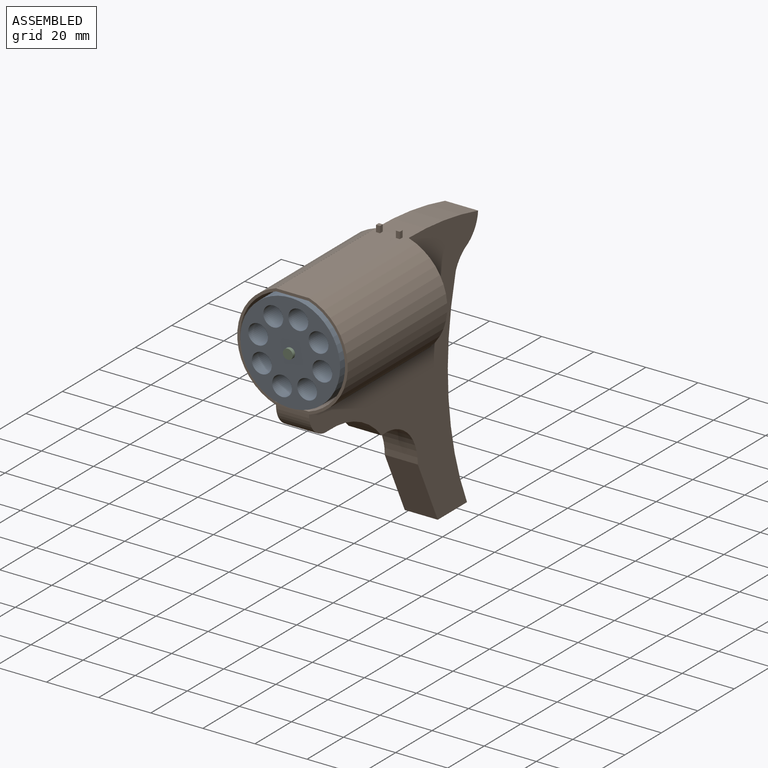
[diagram: assembled view]
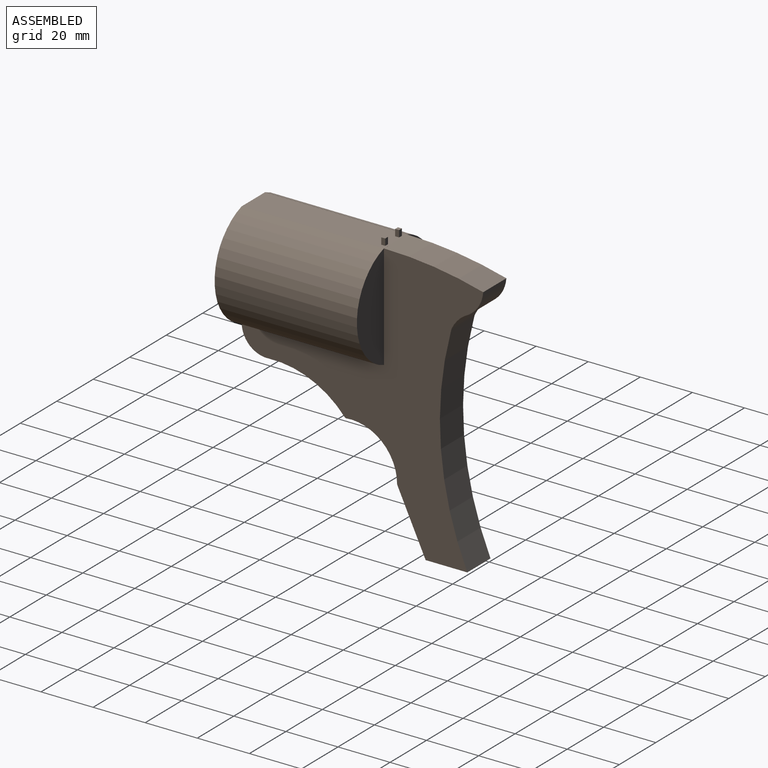
[diagram: assembled view, second angle]
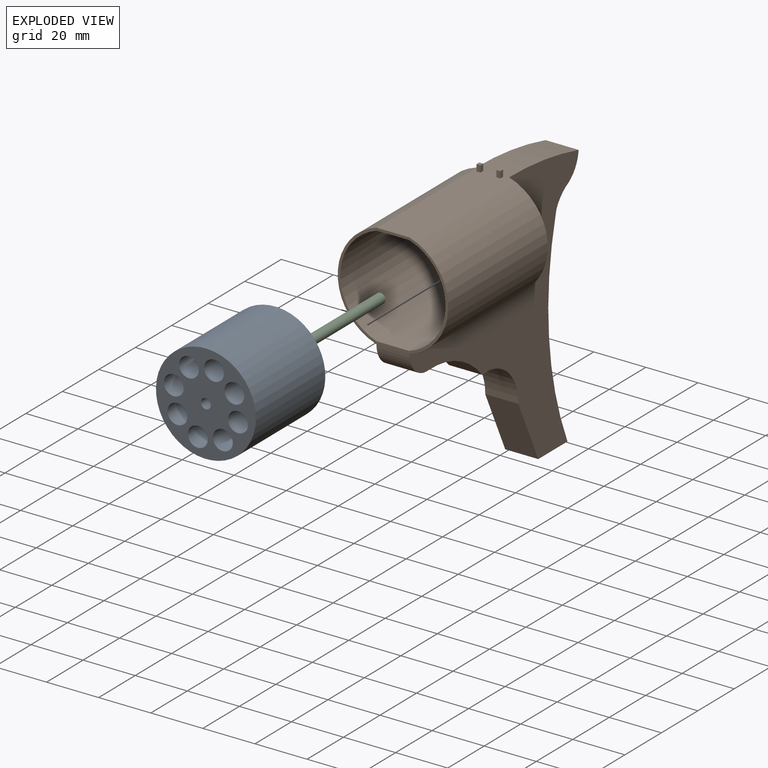
[diagram: exploded view]
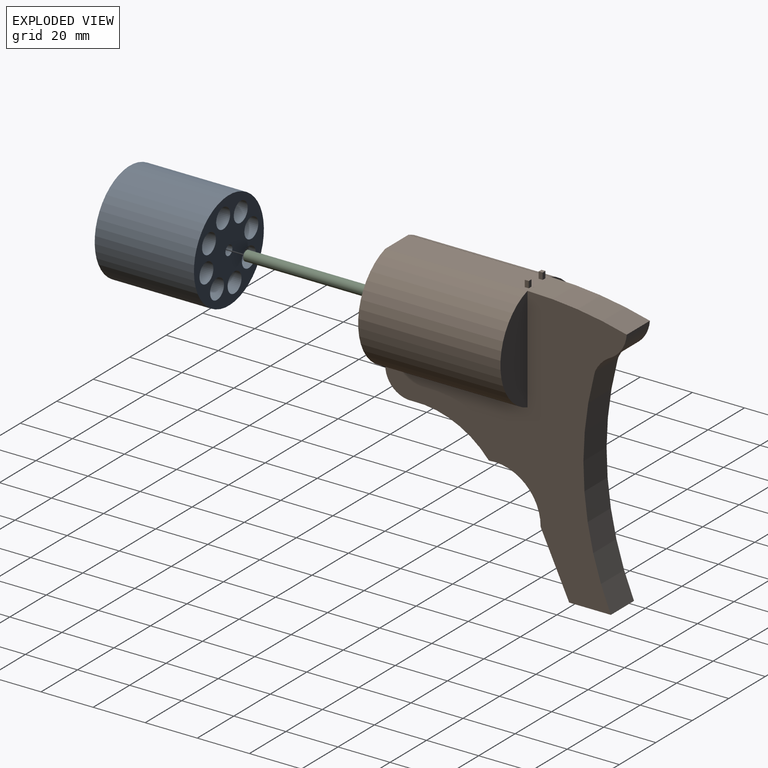
[diagram: exploded view, second angle]
ASSEMBLY  parts=3 mates=2
PART A: 12 faces, bbox 38.4x38.1x38.4 mm
  f0: cylinder r=3.81mm len=38.1mm, axis (0,1,0), area 912.1mm2, adj f10,f11
  f1: cylinder r=1.91mm len=38.1mm, axis (0,1,0), area 456mm2, adj f10,f11
  f2: cylinder r=3.81mm len=38.1mm, axis (0,1,0), area 912.1mm2, adj f10,f11
  f3: cylinder r=3.81mm len=38.1mm, axis (0,1,0), area 912.1mm2, adj f10,f11
  f4: cylinder r=3.81mm len=38.1mm, axis (0,1,0), area 912.1mm2, adj f10,f11
  f5: cylinder r=3.81mm len=38.1mm, axis (0,1,0), area 912.1mm2, adj f10,f11
  f6: cylinder r=3.81mm len=38.1mm, axis (0,1,0), area 912.1mm2, adj f10,f11
  f7: cylinder r=3.81mm len=38.1mm, axis (0,1,0), area 912.1mm2, adj f10,f11
  f8: cylinder r=3.81mm len=38.1mm, axis (0,1,0), area 912.1mm2, adj f10,f11
  f9: cylinder r=19.18mm len=38.35mm, axis (0,1,0), area 4590.8mm2, adj f10,f11
  f10: plane 38.35x38.35mm, normal (0,-1,0), area 779.1mm2, adj f0,f1,f2,f3,f4,f5,f6,f7
  f11: plane 38.35x38.35mm, normal (0,1,0), area 779.1mm2, adj f0,f1,f2,f3,f4,f5,f6,f7
PART B: 36 faces, bbox 42.4x92.7x106.4 mm
  f0: cylinder r=17.84mm len=12.7mm, axis (1,0,0), area 22mm2, adj f4,f5,f9,f23
  f1: plane 16x12.7mm, normal (0,0,-1), area 203.2mm2, adj f4,f5,f19,f23
  f2: plane 42.42x40.47mm, normal (0,-1,0), area 132mm2, adj f3,f7,f11,f12,f13,f14,f15,f16
  f3: cylinder r=21.21mm len=54.61mm, axis (0,1,0), area 2934.3mm2, adj f2,f4,f6,f12
  f4: plane 103.88x92.71mm, normal (-1,0,0), area 3187.5mm2, adj f0,f1,f3,f6,f8,f9,f10,f19
  f5: plane 103.88x92.71mm, normal (1,0,0), area 3187.5mm2, adj f0,f1,f6,f7,f8,f9,f10,f19
  f6: plane 42.42x40.47mm, normal (0,1,0), area 882.6mm2, adj f3,f4,f5,f7,f10,f11,f12,f13
  f7: cylinder r=21.21mm len=54.61mm, axis (0,1,0), area 2934.3mm2, adj f2,f5,f6,f11
  f8: cylinder r=12.03mm len=12.7mm, axis (1,0,0), area 142.3mm2, adj f4,f5,f9,f10
  f9: cylinder r=13.8mm len=12.7mm, axis (1,0,0), area 119.4mm2, adj f0,f4,f5,f8
  f10: cylinder r=146.97mm len=38.1mm, axis (1,0,0), area 489.5mm2, adj f4,f5,f6,f8
  f11: plane 54.61x0.02mm, normal (-1,0,0), area 1.3mm2, adj f2,f6,f7,f13
  f12: plane 54.61x0.02mm, normal (1,0,0), area 1.3mm2, adj f2,f3,f6,f13
  f13: plane 54.61x12.7mm, normal (0,0,1), area 688.9mm2, adj f2,f6,f11,f12,f24,f25,f26,f27
  f14: plane 45.72x12.53mm, normal (0,0,-1), area 573mm2, adj f2,f15,f17,f18
  f15: cylinder r=20.19mm len=45.72mm, axis (0,-1,0), area 2318mm2, adj f2,f14,f16,f18
  f16: plane 45.72x12.52mm, normal (0,0,1), area 572.5mm2, adj f2,f15,f17,f18
  f17: cylinder r=20.19mm len=45.72mm, axis (0,-1,0), area 2318mm2, adj f2,f14,f16,f18
  f18: plane 40.39x38.39mm, normal (0,-1,0), area 1252.9mm2, adj f14,f15,f16,f17,f34
  f19: plane 23.32x12.7mm, normal (0,-0.91,-0.43), area 327.3mm2, adj f1,f4,f5,f20
  f20: cylinder r=17.65mm len=19.86mm, axis (1,0,0), area 382.5mm2, adj f4,f5,f19,f21
  f21: cylinder r=35.94mm len=29.36mm, axis (1,0,0), area 421.7mm2, adj f4,f5,f20,f22
  f22: cylinder r=9.64mm len=12.7mm, axis (1,0,0), area 202.5mm2, adj f2,f4,f5,f21
  f23: cylinder r=123.28mm len=81.39mm, axis (1,0,0), area 1056.9mm2, adj f0,f1,f4,f5
  f24: plane 2.54x1.52mm, normal (0,1,0), area 3.9mm2, adj f13,f25,f27,f28
  f25: plane 2.54x1.52mm, normal (-1,0,0), area 3.9mm2, adj f13,f24,f26,f28
  f26: plane 2.54x1.52mm, normal (0,-1,0), area 3.9mm2, adj f13,f25,f27,f28
  f27: plane 2.54x1.52mm, normal (1,0,0), area 3.9mm2, adj f13,f24,f26,f28
  f28: plane 1.52x1.52mm, normal (0,0,1), area 2.3mm2, adj f24,f25,f26,f27
  f29: plane 2.54x1.52mm, normal (0,1,0), area 3.9mm2, adj f13,f30,f32,f33
  f30: plane 2.54x1.52mm, normal (-1,0,0), area 3.9mm2, adj f13,f29,f31,f33
  f31: plane 2.54x1.52mm, normal (0,-1,0), area 3.9mm2, adj f13,f30,f32,f33
  f32: plane 2.54x1.52mm, normal (1,0,0), area 3.9mm2, adj f13,f29,f31,f33
  f33: plane 1.52x1.52mm, normal (0,0,1), area 2.3mm2, adj f29,f30,f31,f32
  f34: cylinder r=1.91mm len=3.81mm, axis (0,-1,0), area 30.4mm2, adj f18,f35
  f35: plane 3.81x3.81mm, normal (0,-1,0), area 11.4mm2, adj f34
PART C: 3 faces, bbox 3.8x50.8x3.8 mm
  f0: cylinder r=1.91mm len=50.8mm, axis (0,1,0), area 608mm2, adj f1,f2
  f1: plane 3.81x3.81mm, normal (0,-1,0), area 11.4mm2, adj f0
  f2: plane 3.81x3.81mm, normal (0,1,0), area 11.4mm2, adj f0
PLACE A rot(axis=(0,-1,0),120.8deg) t=(185.15,31.83,-144.8)mm
PLACE B t=(-95.6,49.61,-12.33)mm fixed
PLACE C t=(-49.94,43.26,-33.14)mm
MATE revolute A.f1 <-> C.f0  axis (0,1,0) through (47.89,12.78,21.68)mm
MATE fastened C.f0 <-> B.f3  axis (0,1,0) through (47.89,43.26,21.68)mm
